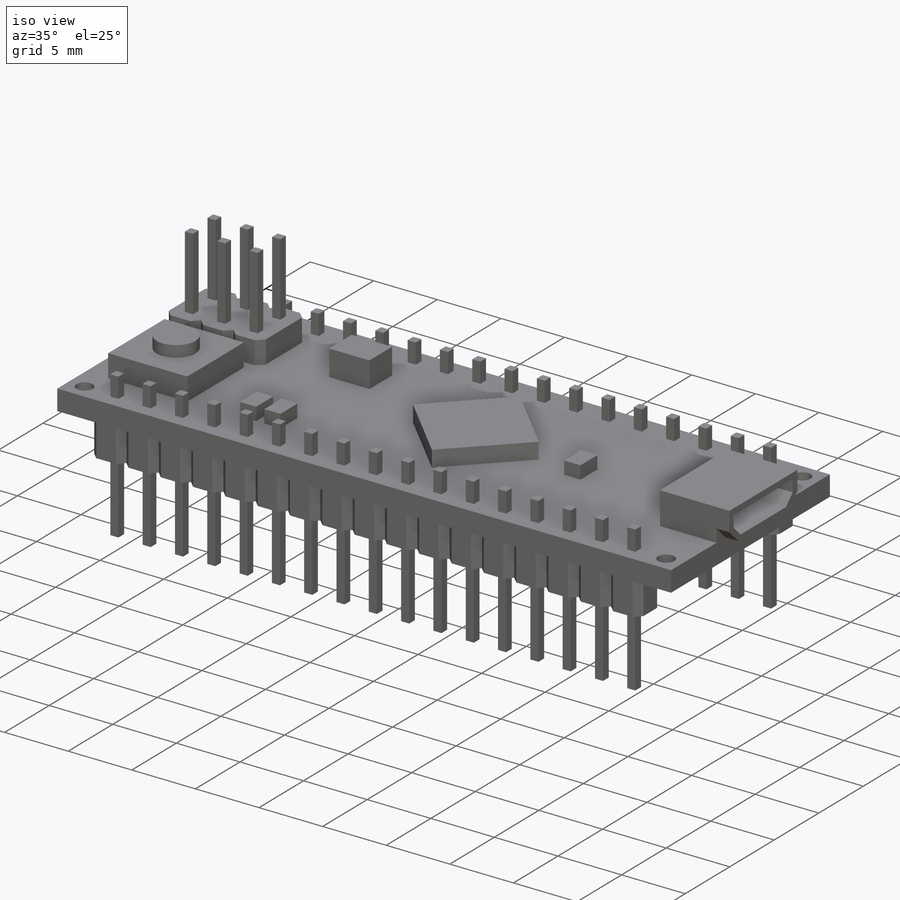
[diagram: iso view]
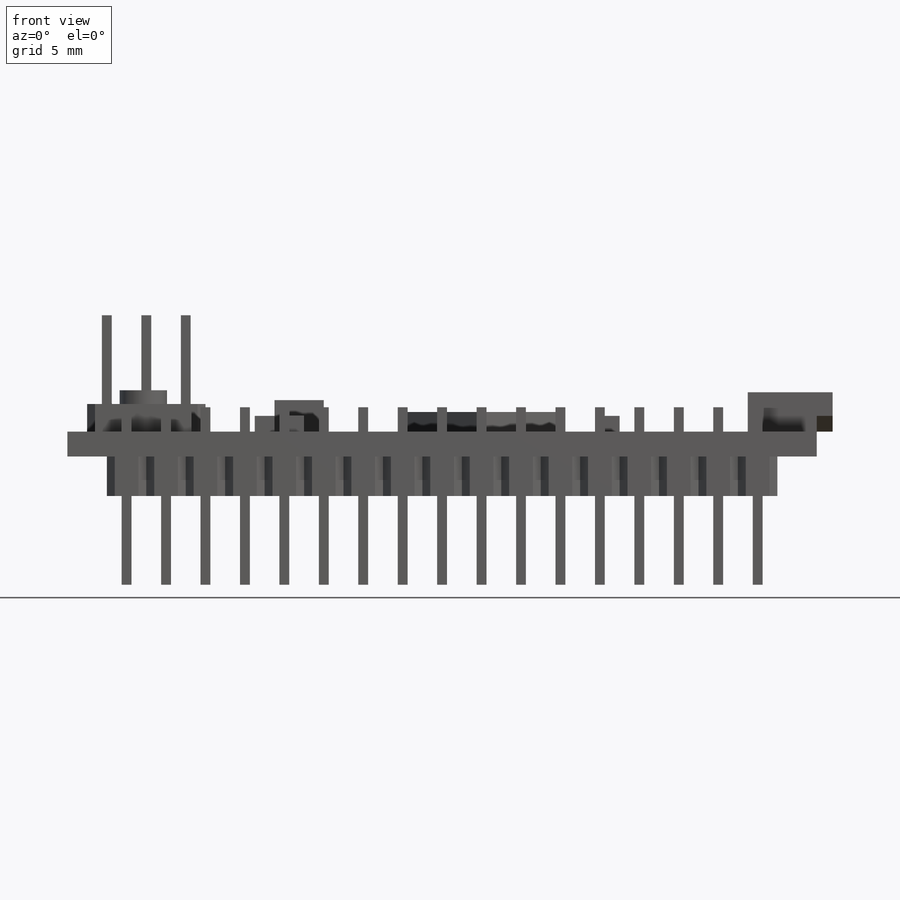
[diagram: front view]
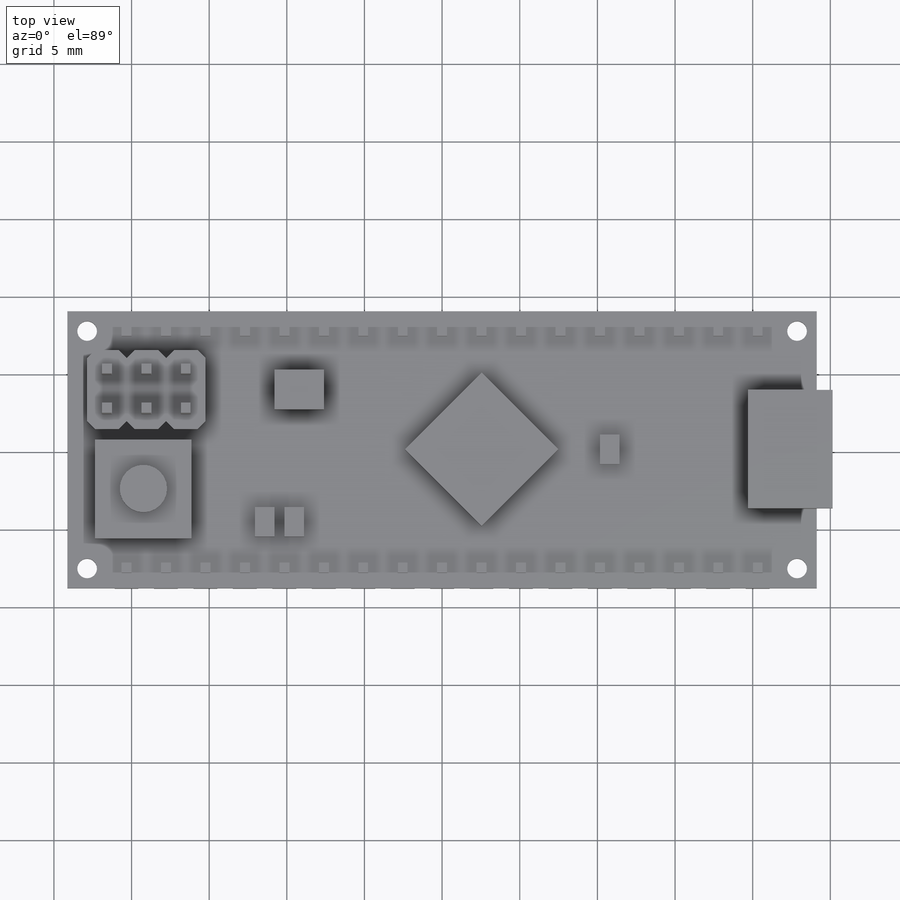
[diagram: top view]
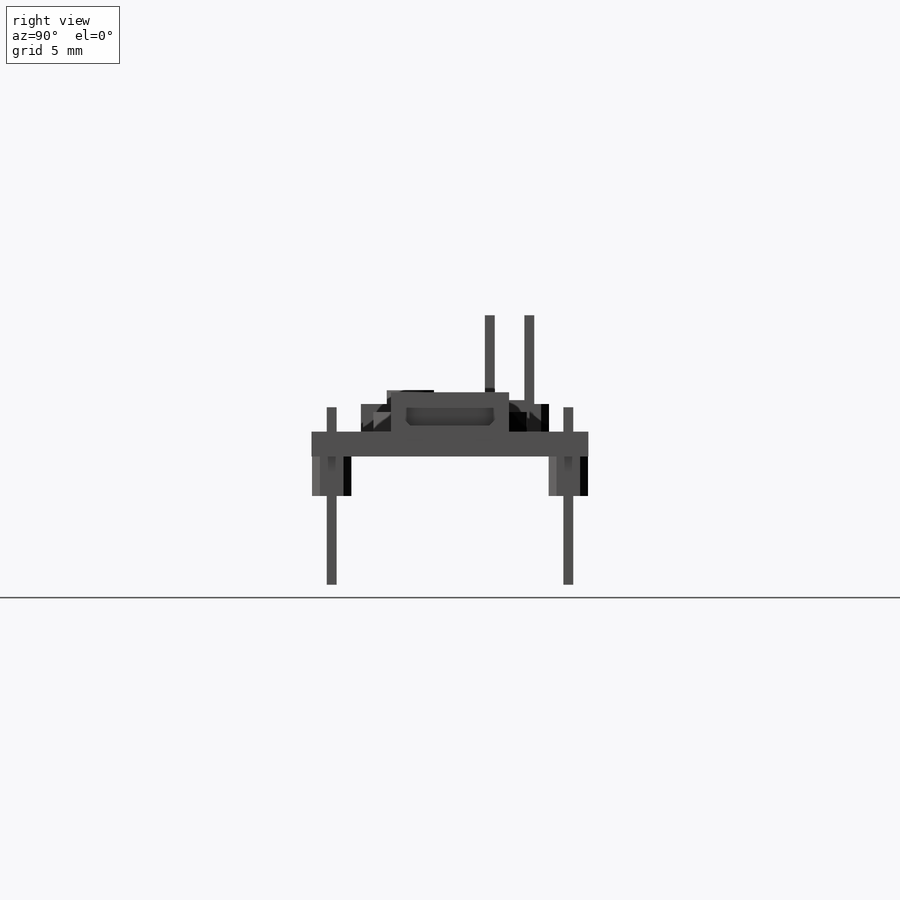
[diagram: right view]
SOLIDWORKS PART (.sldprt)
format: sldprt  version: not decoded by parser v0  size: 1,786,880 bytes
history: native  units: mm
features: sketch x14, extrude x12, cut_extrude x2, pattern_linear x2, material x1, chamfer x1 (+12 scaffold rows collapsed)
feature tree (44):
  scaffold x12  (default folders/planes/origin — collapsed)
  material  "Material <not specified>"
  sketch  "Sketch1"  dims[D1=48.26mm D2=17.8308mm]
  extrude  "Boss-Extrude1"  Depth=1.6002mm
  sketch  "Sketch2"  dims[D1=6.985mm D2=21.59mm]
  extrude  "Boss-Extrude2"  Depth=1.27mm
  sketch  "Sketch3"  dims[D1=3.175mm D2=6.35mm D3=1.778mm D4=6.223mm]
  extrude  "Boss-Extrude3"  Depth=1.778mm
  sketch  "Sketch4"  dims[D1=3.048mm]
  extrude  "Boss-Extrude4"  Depth=0.889mm
  sketch  "Sketch5"  dims[D1=4.445mm D2=7.62mm D3=5.461mm]
  extrude  "Boss-Extrude5"  Depth=2.54mm
  sketch  "Sketch6"
  cut_extrude  "Cut-Extrude1"  Depth=4.318mm
  sketch  "Sketch7"  dims[D1=5.08mm D2=2.54mm D3=1.27mm D4=2.54mm]
  extrude  "Boss-Extrude6"  Depth=1.778mm
  sketch  "Sketch8"  dims[D1=0.635mm D2=2.54mm D3=1.27mm D4=1.27mm]
  extrude  "Boss-Extrude7"  Depth=5.715mm
  pattern_linear  "LPattern1"  Count1=3 Count2=1 Spacing1=2.54mm Spacing2=2.54mm
  sketch  "Sketch9"  dims[D5=1.27mm D1=1.27mm D2=1.27mm D3=1.27mm D4=1.27mm]
  cut_extrude  "Cut-Extrude2"  [1 undecoded]
  sketch  "Sketch10"  dims[D1=2.54mm D2=2.54mm D3=2.54mm D4=0.0254mm]
  extrude  "Boss-Extrude8"  Depth=2.54mm
  sketch  "Sketch11"  dims[D1=0.635mm D2=1.27mm D3=1.27mm]
  extrude  "Boss-Extrude9"  Depth=5.715mm
  pattern_linear  "LPattern2"  Count1=17 Count2=2 Spacing1=2.54mm Spacing2=15.24mm
  sketch  "Sketch12"  dims[D1=12.7mm D2=1.27mm D3=0.635mm D4=1.905mm D5=3.302mm]
  extrude  "Boss-Extrude10"  Depth=1.016mm
  sketch  "Sketch13"  dims[D1=1.27mm D2=1.905mm D3=8.89mm]
  extrude  "Boss-Extrude11"  Depth=1.016mm
  sketch  "Sketch14"  dims[D1=3.175mm D2=2.54mm D3=4.445mm D4=3.81mm]
  extrude  "Boss-Extrude12"  Depth=2.032mm
  chamfer  "Chamfer1"  Distance=1.016mm Angle=45deg
decode coverage: 29 of 31 modeling features carry decoded parameters
note: 1 parameter value undecoded
note: suppression state not decoded; provenance and decode notes live in map.json
